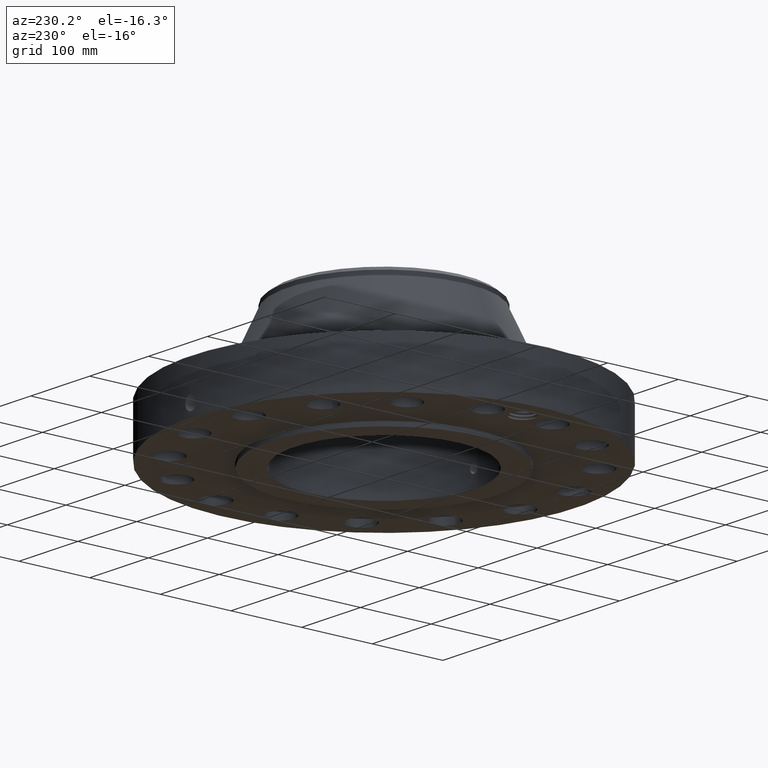
[diagram: clean part render]
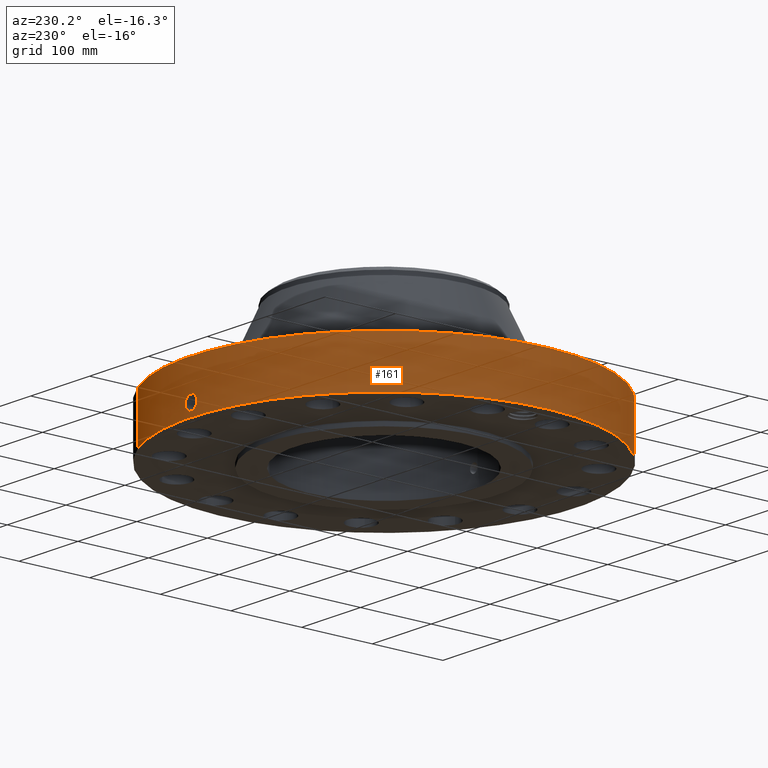
[diagram: same view with one face highlighted and labeled with its STEP entity id]
A machine part, auxiliary view. The second image highlights one B-rep face of the part: STEP entity #161.
In plain terms, the highlighted cylindrical surface (partial cylindrical patch) has radius 273.05 mm, axis along (0, 0, -1).
Its self-contained STEP definition (entity closure, byte-faithful):
#38=AXIS2_PLACEMENT_3D('Cylinder Axis2P3D',#35,#36,#37) ;
#42=AXIS2_PLACEMENT_3D('Circle Axis2P3D',#40,#41,$) ;
#58=AXIS2_PLACEMENT_3D('Circle Axis2P3D',#56,#57,$) ;
#35=CARTESIAN_POINT('Axis2P3D Location',(0.,0.,3.75000000001)) ;
#40=CARTESIAN_POINT('Axis2P3D Location',(0.,0.,0.250000000001)) ;
#44=CARTESIAN_POINT('Vertex',(-5.15382454002,-9.43401254036,0.250000000001)) ;
#46=CARTESIAN_POINT('Vertex',(5.15382454002,9.43401254036,0.250000000001)) ;
#49=CARTESIAN_POINT('Line Origine',(-5.15382454002,-9.43401254036,1.62500000001)) ;
#53=CARTESIAN_POINT('Vertex',(-5.15382454002,-9.43401254036,3.00000000001)) ;
#56=CARTESIAN_POINT('Axis2P3D Location',(0.,0.,3.00000000001)) ;
#60=CARTESIAN_POINT('Vertex',(5.15382454002,9.43401254036,3.00000000001)) ;
#63=CARTESIAN_POINT('Line Origine',(5.15382454002,9.43401254036,1.62500000001)) ;
#75=CARTESIAN_POINT('Control Point',(-0.0567944166536,10.7498499708,1.28953013561)) ;
#76=CARTESIAN_POINT('Control Point',(-0.0382629924682,10.7499478774,1.29254444993)) ;
#77=CARTESIAN_POINT('Control Point',(-0.0194910703991,10.7499987257,1.29408046659)) ;
#78=CARTESIAN_POINT('Control Point',(-0.000716018885437,10.7499999762,1.29411849942)) ;
#79=CARTESIAN_POINT('Vertex',(-0.0567820543428,10.7498502916,1.28953242631)) ;
#81=CARTESIAN_POINT('Vertex',(-0.000715917338794,10.7499999762,1.29411850989)) ;
#85=CARTESIAN_POINT('Control Point',(-0.0567819585678,10.7498500366,1.28953186744)) ;
#86=CARTESIAN_POINT('Control Point',(-0.0966632575974,10.749639379,1.28488521852)) ;
#87=CARTESIAN_POINT('Control Point',(-0.135842754109,10.7492020479,1.27297024646)) ;
#88=CARTESIAN_POINT('Control Point',(-0.171864801757,10.7486260746,1.25462752922)) ;
#89=CARTESIAN_POINT('Vertex',(-0.171864801758,10.7486260746,1.25462752922)) ;
#93=CARTESIAN_POINT('Control Point',(-0.0305848860409,10.7499564913,0.531157240761)) ;
#94=CARTESIAN_POINT('Control Point',(-0.0995195038862,10.7497603643,0.539904444062)) ;
#95=CARTESIAN_POINT('Control Point',(-0.166100724803,10.7490183702,0.564153538452)) ;
#96=CARTESIAN_POINT('Control Point',(-0.225415790307,10.7478174907,0.603028387339)) ;
#97=CARTESIAN_POINT('Control Point',(-0.297416267882,10.7459654534,0.67704428779)) ;
#98=CARTESIAN_POINT('Control Point',(-0.341890627301,10.7445741109,0.767030529019)) ;
#99=CARTESIAN_POINT('Control Point',(-0.353305818118,10.7441977764,0.797759290614)) ;
#100=CARTESIAN_POINT('Control Point',(-0.371781668138,10.7435740431,0.869149711383)) ;
#101=CARTESIAN_POINT('Control Point',(-0.373464773132,10.7435087124,0.942550395109)) ;
#102=CARTESIAN_POINT('Control Point',(-0.369105068117,10.7436639568,0.983246291604)) ;
#103=CARTESIAN_POINT('Control Point',(-0.34683558116,10.7444360489,1.07538191985)) ;
#104=CARTESIAN_POINT('Control Point',(-0.297852180985,10.7459335321,1.15663707889)) ;
#105=CARTESIAN_POINT('Control Point',(-0.261839366942,10.7469281327,1.19745841984)) ;
#106=CARTESIAN_POINT('Control Point',(-0.219078097976,10.7478711591,1.23058613572)) ;
#107=CARTESIAN_POINT('Control Point',(-0.171864801757,10.7486260746,1.25462752922)) ;
#108=CARTESIAN_POINT('Vertex',(-0.0305848860409,10.7499564913,0.531157240761)) ;
#112=CARTESIAN_POINT('Control Point',(-0.0305848860409,10.7499564913,0.531157240761)) ;
#113=CARTESIAN_POINT('Control Point',(-0.0203844796572,10.7499855127,0.530869974424)) ;
#114=CARTESIAN_POINT('Control Point',(-0.0101779958864,10.7500000026,0.530942614676)) ;
#115=CARTESIAN_POINT('Control Point',(2.72878356295E-006,10.75,0.531374667805)) ;
#116=CARTESIAN_POINT('Vertex',(2.7287835395E-006,10.75,0.531374667805)) ;
#120=CARTESIAN_POINT('Control Point',(0.192994359745,10.7482674501,0.586736654107)) ;
#121=CARTESIAN_POINT('Control Point',(0.149148195131,10.7490547455,0.561643875797)) ;
#122=CARTESIAN_POINT('Control Point',(0.101145673126,10.7496790041,0.543642463378)) ;
#123=CARTESIAN_POINT('Control Point',(0.0508155936119,10.7499999871,0.533531079885)) ;
#124=CARTESIAN_POINT('Control Point',(2.72878354383E-006,10.75,0.531374667805)) ;
#125=CARTESIAN_POINT('Vertex',(0.192994359745,10.7482674501,0.586736654107)) ;
#129=CARTESIAN_POINT('Control Point',(0.192994359745,10.7482674501,0.586736654107)) ;
#130=CARTESIAN_POINT('Control Point',(0.221848470828,10.7477493498,0.603249610094)) ;
#131=CARTESIAN_POINT('Control Point',(0.249019842416,10.7471646084,0.622640986798)) ;
#132=CARTESIAN_POINT('Control Point',(0.274104091667,10.7465429546,0.644726392706)) ;
#133=CARTESIAN_POINT('Control Point',(0.340614404686,10.744718104,0.716853877759)) ;
#134=CARTESIAN_POINT('Control Point',(0.382738131503,10.7432168297,0.806816471558)) ;
#135=CARTESIAN_POINT('Control Point',(0.397428599444,10.7426387562,0.871363686271)) ;
#136=CARTESIAN_POINT('Control Point',(0.397846527338,10.7426626095,0.998339861469)) ;
#137=CARTESIAN_POINT('Control Point',(0.348008168906,10.7444099638,1.11340321308)) ;
#138=CARTESIAN_POINT('Control Point',(0.312903341116,10.7455631406,1.16309909193)) ;
#139=CARTESIAN_POINT('Control Point',(0.234583507409,10.7476755014,1.23721939625)) ;
#140=CARTESIAN_POINT('Control Point',(0.137662065635,10.7492549656,1.27962320962)) ;
#141=CARTESIAN_POINT('Control Point',(0.0921850418248,10.749755908,1.29158731264)) ;
#142=CARTESIAN_POINT('Control Point',(0.0458118854535,10.7500001103,1.29640029841)) ;
#143=CARTESIAN_POINT('Control Point',(-2.58579355259E-005,10.75,1.29415298431)) ;
#144=CARTESIAN_POINT('Vertex',(-2.58579355412E-005,10.75,1.29415298431)) ;
#148=CARTESIAN_POINT('Control Point',(-0.000715917328914,10.7499999762,1.29411850987)) ;
#149=CARTESIAN_POINT('Control Point',(-0.00037091187332,10.7499999992,1.29413606715)) ;
#150=CARTESIAN_POINT('Control Point',(-2.58579409472E-005,10.75,1.29415298431)) ;
#36=DIRECTION('Axis2P3D Direction',(0.,0.,-0.0393700787402)) ;
#37=DIRECTION('Axis2P3D XDirection',(0.0188750212049,0.0345504945626,0.)) ;
#41=DIRECTION('Axis2P3D Direction',(0.,0.,-0.0393700787402)) ;
#50=DIRECTION('Vector Direction',(0.,0.,-0.0393700787402)) ;
#57=DIRECTION('Axis2P3D Direction',(0.,0.,-0.0393700787402)) ;
#64=DIRECTION('Vector Direction',(0.,0.,-0.0393700787402)) ;
#51=VECTOR('Line Direction',#50,0.0393700787402) ;
#65=VECTOR('Line Direction',#64,0.0393700787402) ;
#69=ORIENTED_EDGE('',*,*,#48,.F.) ;
#70=ORIENTED_EDGE('',*,*,#55,.T.) ;
#71=ORIENTED_EDGE('',*,*,#62,.T.) ;
#72=ORIENTED_EDGE('',*,*,#67,.F.) ;
#153=ORIENTED_EDGE('',*,*,#83,.F.) ;
#154=ORIENTED_EDGE('',*,*,#91,.T.) ;
#155=ORIENTED_EDGE('',*,*,#110,.F.) ;
#156=ORIENTED_EDGE('',*,*,#118,.T.) ;
#157=ORIENTED_EDGE('',*,*,#127,.F.) ;
#158=ORIENTED_EDGE('',*,*,#146,.T.) ;
#159=ORIENTED_EDGE('',*,*,#151,.F.) ;
#160=FACE_BOUND('',#152,.T.) ;
#161=ADVANCED_FACE('PartBody',(#73,#160),#39,.T.) ;
#74=B_SPLINE_CURVE_WITH_KNOTS('',3,(#75,#76,#77,#78),.UNSPECIFIED.,.F.,.U.,(4,4),(4.43834912189,6.52127021008),.UNSPECIFIED.) ;
#84=B_SPLINE_CURVE_WITH_KNOTS('',3,(#85,#86,#87,#88),.UNSPECIFIED.,.F.,.U.,(4,4),(0.,4.51145082192),.UNSPECIFIED.) ;
#92=B_SPLINE_CURVE_WITH_KNOTS('',5,(#93,#94,#95,#96,#97,#98,#99,#100,#101,#102,#103,#104,#105,#106,#107),.UNSPECIFIED.,.F.,.U.,(6,3,3,3,6),(0.,12.0763342056,17.9495287729,25.3608838081,35.2159809883),.UNSPECIFIED.) ;
#111=B_SPLINE_CURVE_WITH_KNOTS('',3,(#112,#113,#114,#115),.UNSPECIFIED.,.F.,.U.,(4,4),(0.,1.06400479433),.UNSPECIFIED.) ;
#119=B_SPLINE_CURVE_WITH_KNOTS('',4,(#120,#121,#122,#123,#124),.UNSPECIFIED.,.F.,.U.,(5,5),(0.,7.08071817658),.UNSPECIFIED.) ;
#128=B_SPLINE_CURVE_WITH_KNOTS('',5,(#129,#130,#131,#132,#133,#134,#135,#136,#137,#138,#139,#140,#141,#142,#143),.UNSPECIFIED.,.F.,.U.,(6,3,3,3,6),(0.,5.82456381087,17.1408282931,27.814922206,36.3829473483),.UNSPECIFIED.) ;
#147=B_SPLINE_CURVE_WITH_KNOTS('',2,(#148,#149,#150),.UNSPECIFIED.,.F.,.U.,(3,3),(1.03536001126,1.06115910772),.UNSPECIFIED.) ;
#43=CIRCLE('generated circle',#42,10.75) ;
#59=CIRCLE('generated circle',#58,10.75) ;
#39=CYLINDRICAL_SURFACE('generated cylinder',#38,10.75) ;
#48=EDGE_CURVE('',#45,#47,#43,.T.) ;
#55=EDGE_CURVE('',#45,#54,#52,.F.) ;
#62=EDGE_CURVE('',#54,#61,#59,.T.) ;
#67=EDGE_CURVE('',#47,#61,#66,.F.) ;
#83=EDGE_CURVE('',#80,#82,#74,.T.) ;
#91=EDGE_CURVE('',#80,#90,#84,.T.) ;
#110=EDGE_CURVE('',#109,#90,#92,.T.) ;
#118=EDGE_CURVE('',#109,#117,#111,.T.) ;
#127=EDGE_CURVE('',#126,#117,#119,.T.) ;
#146=EDGE_CURVE('',#126,#145,#128,.T.) ;
#151=EDGE_CURVE('',#82,#145,#147,.T.) ;
#68=EDGE_LOOP('',(#69,#70,#71,#72)) ;
#152=EDGE_LOOP('',(#153,#154,#155,#156,#157,#158,#159)) ;
#73=FACE_OUTER_BOUND('',#68,.T.) ;
#52=LINE('Line',#49,#51) ;
#66=LINE('Line',#63,#65) ;
#45=VERTEX_POINT('',#44) ;
#47=VERTEX_POINT('',#46) ;
#54=VERTEX_POINT('',#53) ;
#61=VERTEX_POINT('',#60) ;
#80=VERTEX_POINT('',#79) ;
#82=VERTEX_POINT('',#81) ;
#90=VERTEX_POINT('',#89) ;
#109=VERTEX_POINT('',#108) ;
#117=VERTEX_POINT('',#116) ;
#126=VERTEX_POINT('',#125) ;
#145=VERTEX_POINT('',#144) ;